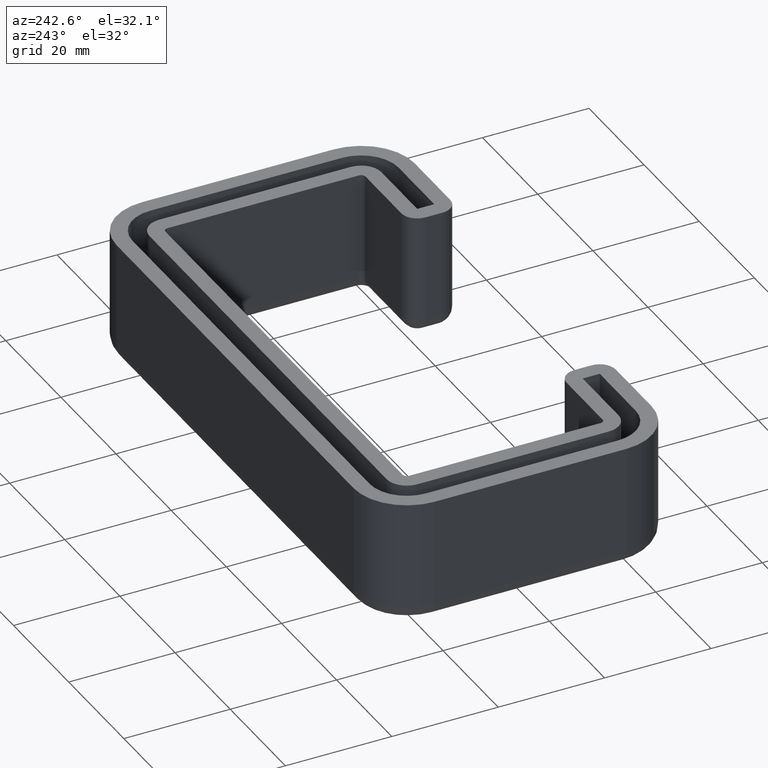
[diagram: clean part render]
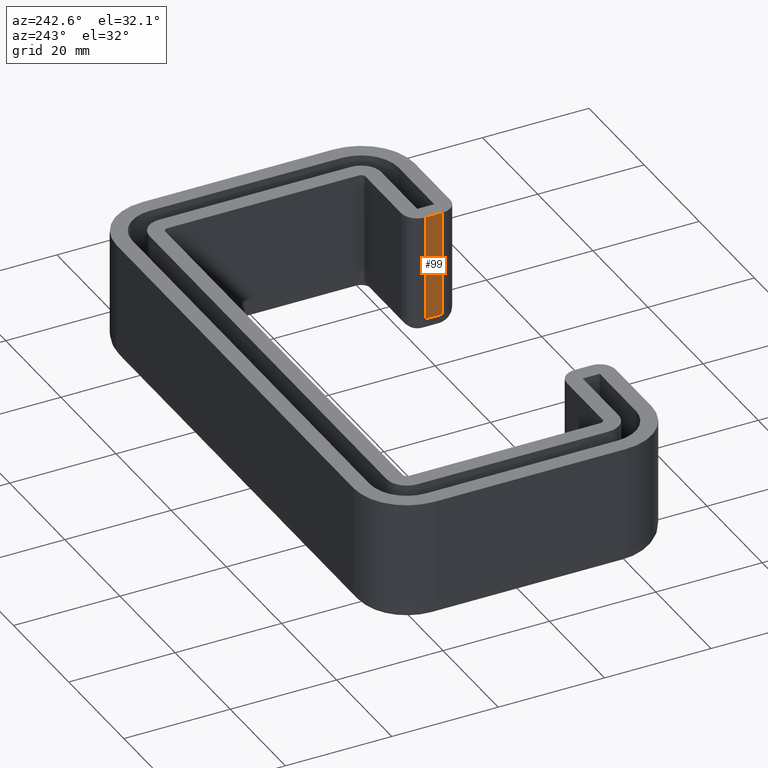
[diagram: same view with one face highlighted and labeled with its STEP entity id]
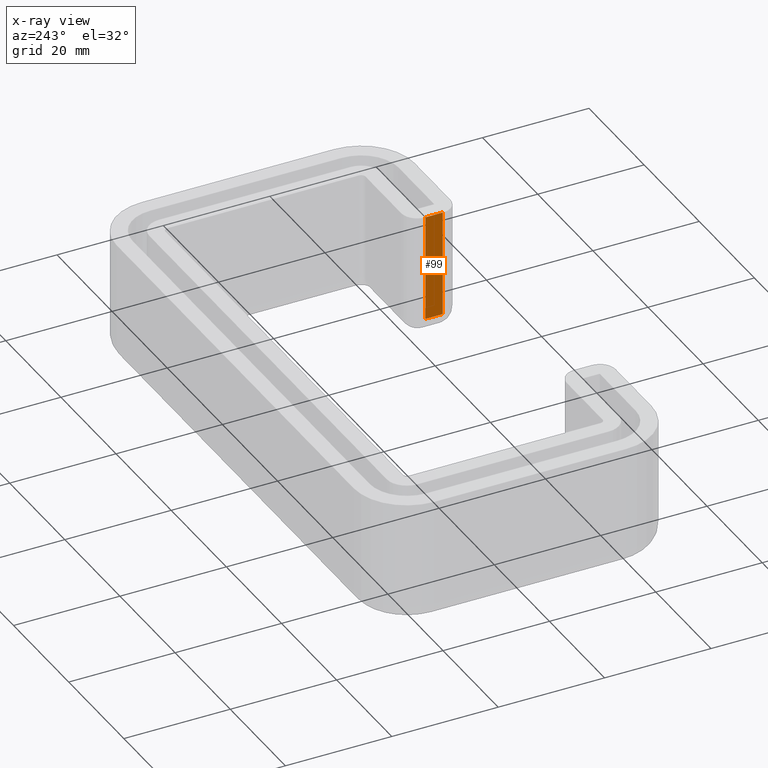
[diagram: x-ray of the same camera — body ghosted, the highlighted face saturated]
A machine part, auxiliary view. The second image highlights one B-rep face of the part: STEP entity #99.
The next image is the same camera in x-ray: the body ghosted, the highlighted face saturated — about 0% of this face is hidden behind the body in this view.
In plain terms, the highlighted planar face has unit normal (-1, 0, 0).
Its self-contained STEP definition (entity closure, byte-faithful):
#99 = ADVANCED_FACE( '', ( #196 ), #197, .T. );
#196 = FACE_OUTER_BOUND( '', #339, .T. );
#197 = PLANE( '', #340 );
#339 = EDGE_LOOP( '', ( #671, #672, #673, #674 ) );
#340 = AXIS2_PLACEMENT_3D( '', #675, #676, #677 );
#671 = ORIENTED_EDGE( '', *, *, #1119, .T. );
#672 = ORIENTED_EDGE( '', *, *, #1120, .T. );
#673 = ORIENTED_EDGE( '', *, *, #1121, .T. );
#674 = ORIENTED_EDGE( '', *, *, #1010, .T. );
#675 = CARTESIAN_POINT( '', ( 27.0000000000000, -28.0000000000000, 0.000000000000000 ) );
#676 = DIRECTION( '', ( -1.00000000000000, 0.000000000000000, 0.000000000000000 ) );
#677 = DIRECTION( '', ( 0.000000000000000, -1.00000000000000, 0.000000000000000 ) );
#1010 = EDGE_CURVE( '', #1199, #1197, #1200, .T. );
#1119 = EDGE_CURVE( '', #1197, #1392, #1393, .T. );
#1120 = EDGE_CURVE( '', #1392, #1394, #1395, .F. );
#1121 = EDGE_CURVE( '', #1394, #1199, #1396, .F. );
#1197 = VERTEX_POINT( '', #1487 );
#1199 = VERTEX_POINT( '', #1489 );
#1200 = LINE( '', #1490, #1491 );
#1392 = VERTEX_POINT( '', #1746 );
#1393 = LINE( '', #1747, #1748 );
#1394 = VERTEX_POINT( '', #1749 );
#1395 = LINE( '', #1750, #1751 );
#1396 = LINE( '', #1752, #1753 );
#1487 = CARTESIAN_POINT( '', ( 27.0000000000000, -21.7999999999999, 0.000000000000000 ) );
#1489 = CARTESIAN_POINT( '', ( 27.0000000000000, -25.0000000000000, 0.000000000000000 ) );
#1490 = CARTESIAN_POINT( '', ( 27.0000000000000, -28.0000000000000, 0.000000000000000 ) );
#1491 = VECTOR( '', #1870, 1000.00000000000 );
#1746 = CARTESIAN_POINT( '', ( 27.0000000000000, -21.7999999999999, -20.0000000000000 ) );
#1747 = CARTESIAN_POINT( '', ( 27.0000000000000, -21.7999999999999, 0.000000000000000 ) );
#1748 = VECTOR( '', #2069, 1000.00000000000 );
#1749 = CARTESIAN_POINT( '', ( 27.0000000000000, -25.0000000000000, -20.0000000000000 ) );
#1750 = CARTESIAN_POINT( '', ( 27.0000000000000, -28.0000000000000, -20.0000000000000 ) );
#1751 = VECTOR( '', #2070, 1000.00000000000 );
#1752 = CARTESIAN_POINT( '', ( 27.0000000000000, -25.0000000000000, 0.000000000000000 ) );
#1753 = VECTOR( '', #2071, 1000.00000000000 );
#1870 = DIRECTION( '', ( 0.000000000000000, 1.00000000000000, 0.000000000000000 ) );
#2069 = DIRECTION( '', ( 0.000000000000000, 0.000000000000000, -1.00000000000000 ) );
#2070 = DIRECTION( '', ( 0.000000000000000, 1.00000000000000, 0.000000000000000 ) );
#2071 = DIRECTION( '', ( 0.000000000000000, 0.000000000000000, -1.00000000000000 ) );